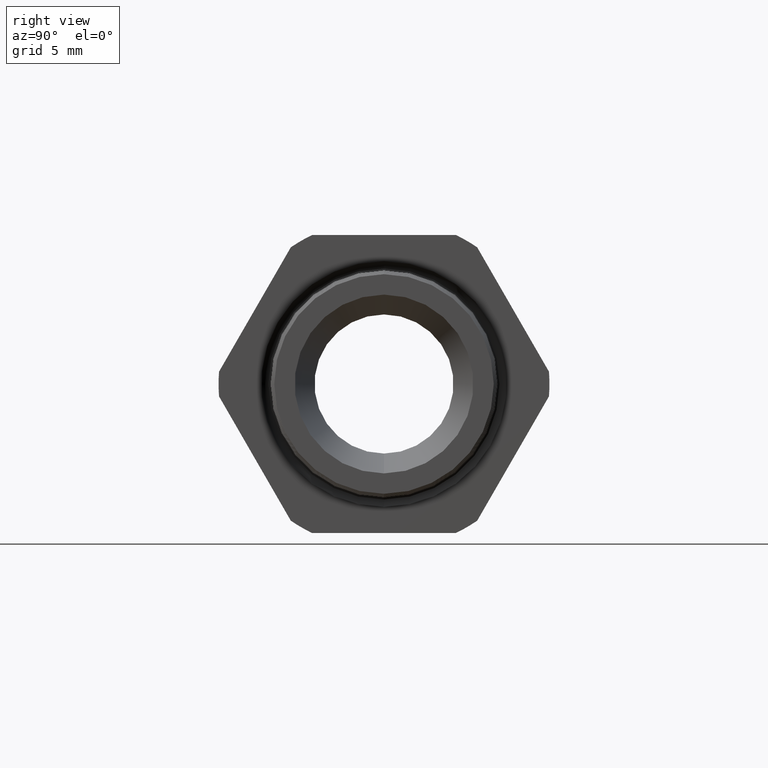
[diagram: clean part render]
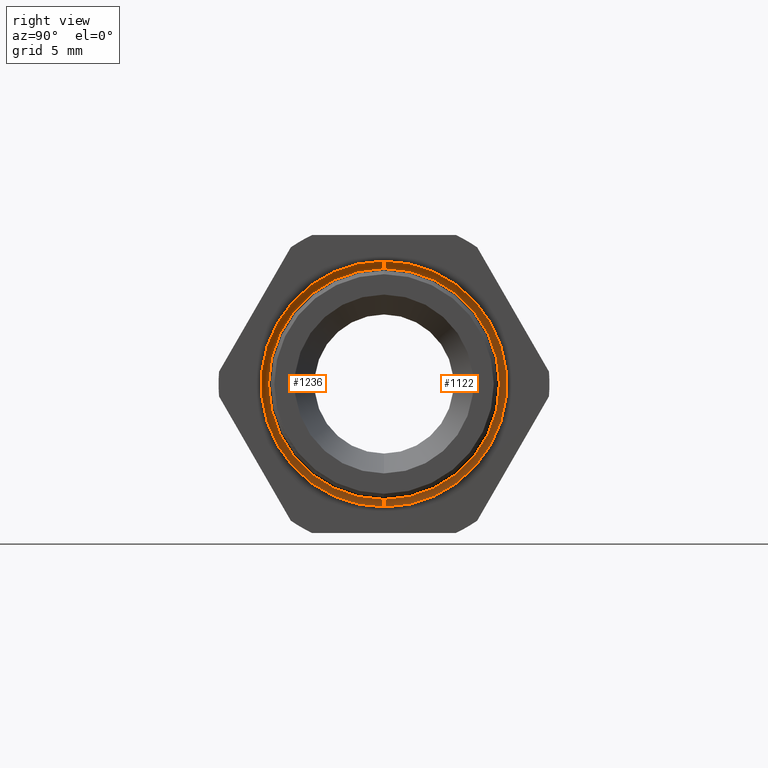
[diagram: same view with one multi-face feature highlighted, each face labeled with its STEP entity id]
A machine part, right view. The highlighted faces form ONE feature: a constant-radius fillet chain: 2 tangent blend faces with common blend radius 0.5715 mm. The faces share edges in the B-rep.
Their STEP definitions:
[1] entity #1122 (Torus):
#513 = EDGE_CURVE ( 'NONE', #1216, #1239, #2269, .T. ) ;
#1102 = VERTEX_POINT ( 'NONE', #3255 ) ;
#1104 = EDGE_CURVE ( 'NONE', #1102, #1164, #3253, .T. ) ;
#1112 = ORIENTED_EDGE ( 'NONE', *, *, #513, .F. ) ;
#1113 = ORIENTED_EDGE ( 'NONE', *, *, #1285, .F. ) ;
#1122 = ADVANCED_FACE ( 'NONE', ( #3306 ), #3301, .F. ) ;
#1123 = EDGE_LOOP ( 'NONE', ( #1124, #1125, #1112, #1113 ) ) ;
#1124 = ORIENTED_EDGE ( 'NONE', *, *, #1104, .F. ) ;
#1125 = ORIENTED_EDGE ( 'NONE', *, *, #1288, .T. ) ;
#1164 = VERTEX_POINT ( 'NONE', #3366 ) ;
#1216 = VERTEX_POINT ( 'NONE', #3466 ) ;
#1239 = VERTEX_POINT ( 'NONE', #3472 ) ;
#1285 = EDGE_CURVE ( 'NONE', #1164, #1216, #3571, .T. ) ;
#1288 = EDGE_CURVE ( 'NONE', #1102, #1239, #3566, .T. ) ;
#2267 = DIRECTION ( 'NONE',  ( -1.000000000000000000, 0.0000000000000000000, 0.0000000000000000000 ) ) ;
#2268 = AXIS2_PLACEMENT_3D ( 'NONE', #2274, #2267, #2326 ) ;
#2269 = CIRCLE ( 'NONE', #2268, 0.3091292001446734300 ) ;
#2274 = CARTESIAN_POINT ( 'NONE',  ( -0.3100000000000000000, 0.0000000000000000000, 0.0000000000000000000 ) ) ;
#2326 = DIRECTION ( 'NONE',  ( 0.0000000000000000000, 0.0000000000000000000, -1.000000000000000000 ) ) ;
#3249 = DIRECTION ( 'NONE',  ( 0.0000000000000000000, 0.0000000000000000000, -1.000000000000000000 ) ) ;
#3250 = DIRECTION ( 'NONE',  ( 1.000000000000000000, 0.0000000000000000000, 0.0000000000000000000 ) ) ;
#3251 = CARTESIAN_POINT ( 'NONE',  ( -0.3089999999999999400, 0.0000000000000000000, 0.0000000000000000000 ) ) ;
#3252 = AXIS2_PLACEMENT_3D ( 'NONE', #3251, #3250, #3249 ) ;
#3253 = CIRCLE ( 'NONE', #3252, 0.2641514333516843900 ) ;
#3255 = CARTESIAN_POINT ( 'NONE',  ( -0.3089999999999999400, 0.0000000000000000000, -0.2641514333516843900 ) ) ;
#3296 = DIRECTION ( 'NONE',  ( 0.0000000000000000000, 0.0000000000000000000, -1.000000000000000000 ) ) ;
#3297 = DIRECTION ( 'NONE',  ( 1.000000000000000000, 0.0000000000000000000, 0.0000000000000000000 ) ) ;
#3298 = CARTESIAN_POINT ( 'NONE',  ( -0.3089999999999999400, 0.0000000000000000000, 0.0000000000000000000 ) ) ;
#3299 = AXIS2_PLACEMENT_3D ( 'NONE', #3298, #3297, #3296 ) ;
#3301 = TOROIDAL_SURFACE ( 'NONE', #3299, 0.2866514333516844100, 0.02250000000000001300 ) ;
#3306 = FACE_OUTER_BOUND ( 'NONE', #1123, .T. ) ;
#3366 = CARTESIAN_POINT ( 'NONE',  ( -0.3089999999999999400, 3.234922073443257500E-017, 0.2641514333516843900 ) ) ;
#3466 = CARTESIAN_POINT ( 'NONE',  ( -0.3100000000000000000, 3.785740854801559000E-017, 0.3091292001446734300 ) ) ;
#3472 = CARTESIAN_POINT ( 'NONE',  ( -0.3100000000000000000, 0.0000000000000000000, -0.3091292001446734300 ) ) ;
#3565 = AXIS2_PLACEMENT_3D ( 'NONE', #3628, #3627, #3626 ) ;
#3566 = CIRCLE ( 'NONE', #3565, 0.02250000000000003400 ) ;
#3567 = DIRECTION ( 'NONE',  ( 0.0000000000000000000, 1.224646799147352700E-016, 1.000000000000000000 ) ) ;
#3568 = DIRECTION ( 'NONE',  ( 0.0000000000000000000, 1.000000000000000000, -1.224646799147353200E-016 ) ) ;
#3569 = CARTESIAN_POINT ( 'NONE',  ( -0.3089999999999999400, 3.510467603251412000E-017, 0.2866514333516844100 ) ) ;
#3570 = AXIS2_PLACEMENT_3D ( 'NONE', #3569, #3568, #3567 ) ;
#3571 = CIRCLE ( 'NONE', #3570, 0.02250000000000003400 ) ;
#3626 = DIRECTION ( 'NONE',  ( 0.0000000000000000000, 0.0000000000000000000, -1.000000000000000000 ) ) ;
#3627 = DIRECTION ( 'NONE',  ( 0.0000000000000000000, -1.000000000000000000, 0.0000000000000000000 ) ) ;
#3628 = CARTESIAN_POINT ( 'NONE',  ( -0.3089999999999999400, 0.0000000000000000000, -0.2866514333516844100 ) ) ;
[2] entity #1236 (Torus):
#1102 = VERTEX_POINT ( 'NONE', #3255 ) ;
#1162 = EDGE_CURVE ( 'NONE', #1164, #1102, #3371, .T. ) ;
#1164 = VERTEX_POINT ( 'NONE', #3366 ) ;
#1215 = ORIENTED_EDGE ( 'NONE', *, *, #1285, .T. ) ;
#1216 = VERTEX_POINT ( 'NONE', #3466 ) ;
#1236 = ADVANCED_FACE ( 'NONE', ( #3482 ), #3481, .F. ) ;
#1237 = EDGE_LOOP ( 'NONE', ( #1284, #1215, #1286, #1287 ) ) ;
#1238 = EDGE_CURVE ( 'NONE', #1239, #1216, #3477, .T. ) ;
#1239 = VERTEX_POINT ( 'NONE', #3472 ) ;
#1284 = ORIENTED_EDGE ( 'NONE', *, *, #1162, .F. ) ;
#1285 = EDGE_CURVE ( 'NONE', #1164, #1216, #3571, .T. ) ;
#1286 = ORIENTED_EDGE ( 'NONE', *, *, #1238, .F. ) ;
#1287 = ORIENTED_EDGE ( 'NONE', *, *, #1288, .F. ) ;
#1288 = EDGE_CURVE ( 'NONE', #1102, #1239, #3566, .T. ) ;
#3255 = CARTESIAN_POINT ( 'NONE',  ( -0.3089999999999999400, 0.0000000000000000000, -0.2641514333516843900 ) ) ;
#3366 = CARTESIAN_POINT ( 'NONE',  ( -0.3089999999999999400, 3.234922073443257500E-017, 0.2641514333516843900 ) ) ;
#3367 = DIRECTION ( 'NONE',  ( 0.0000000000000000000, 0.0000000000000000000, -1.000000000000000000 ) ) ;
#3368 = DIRECTION ( 'NONE',  ( 1.000000000000000000, 0.0000000000000000000, 0.0000000000000000000 ) ) ;
#3369 = CARTESIAN_POINT ( 'NONE',  ( -0.3089999999999999400, 0.0000000000000000000, 0.0000000000000000000 ) ) ;
#3370 = AXIS2_PLACEMENT_3D ( 'NONE', #3369, #3368, #3367 ) ;
#3371 = CIRCLE ( 'NONE', #3370, 0.2641514333516843900 ) ;
#3466 = CARTESIAN_POINT ( 'NONE',  ( -0.3100000000000000000, 3.785740854801559000E-017, 0.3091292001446734300 ) ) ;
#3472 = CARTESIAN_POINT ( 'NONE',  ( -0.3100000000000000000, 0.0000000000000000000, -0.3091292001446734300 ) ) ;
#3473 = DIRECTION ( 'NONE',  ( 0.0000000000000000000, 0.0000000000000000000, -1.000000000000000000 ) ) ;
#3474 = DIRECTION ( 'NONE',  ( -1.000000000000000000, 0.0000000000000000000, 0.0000000000000000000 ) ) ;
#3475 = CARTESIAN_POINT ( 'NONE',  ( -0.3100000000000000000, 0.0000000000000000000, 0.0000000000000000000 ) ) ;
#3476 = AXIS2_PLACEMENT_3D ( 'NONE', #3475, #3474, #3473 ) ;
#3477 = CIRCLE ( 'NONE', #3476, 0.3091292001446734300 ) ;
#3478 = DIRECTION ( 'NONE',  ( 0.0000000000000000000, 0.0000000000000000000, -1.000000000000000000 ) ) ;
#3479 = DIRECTION ( 'NONE',  ( 1.000000000000000000, 0.0000000000000000000, 0.0000000000000000000 ) ) ;
#3480 = AXIS2_PLACEMENT_3D ( 'NONE', #3487, #3479, #3478 ) ;
#3481 = TOROIDAL_SURFACE ( 'NONE', #3480, 0.2866514333516844100, 0.02250000000000001300 ) ;
#3482 = FACE_OUTER_BOUND ( 'NONE', #1237, .T. ) ;
#3487 = CARTESIAN_POINT ( 'NONE',  ( -0.3089999999999999400, 0.0000000000000000000, 0.0000000000000000000 ) ) ;
#3565 = AXIS2_PLACEMENT_3D ( 'NONE', #3628, #3627, #3626 ) ;
#3566 = CIRCLE ( 'NONE', #3565, 0.02250000000000003400 ) ;
#3567 = DIRECTION ( 'NONE',  ( 0.0000000000000000000, 1.224646799147352700E-016, 1.000000000000000000 ) ) ;
#3568 = DIRECTION ( 'NONE',  ( 0.0000000000000000000, 1.000000000000000000, -1.224646799147353200E-016 ) ) ;
#3569 = CARTESIAN_POINT ( 'NONE',  ( -0.3089999999999999400, 3.510467603251412000E-017, 0.2866514333516844100 ) ) ;
#3570 = AXIS2_PLACEMENT_3D ( 'NONE', #3569, #3568, #3567 ) ;
#3571 = CIRCLE ( 'NONE', #3570, 0.02250000000000003400 ) ;
#3626 = DIRECTION ( 'NONE',  ( 0.0000000000000000000, 0.0000000000000000000, -1.000000000000000000 ) ) ;
#3627 = DIRECTION ( 'NONE',  ( 0.0000000000000000000, -1.000000000000000000, 0.0000000000000000000 ) ) ;
#3628 = CARTESIAN_POINT ( 'NONE',  ( -0.3089999999999999400, 0.0000000000000000000, -0.2866514333516844100 ) ) ;